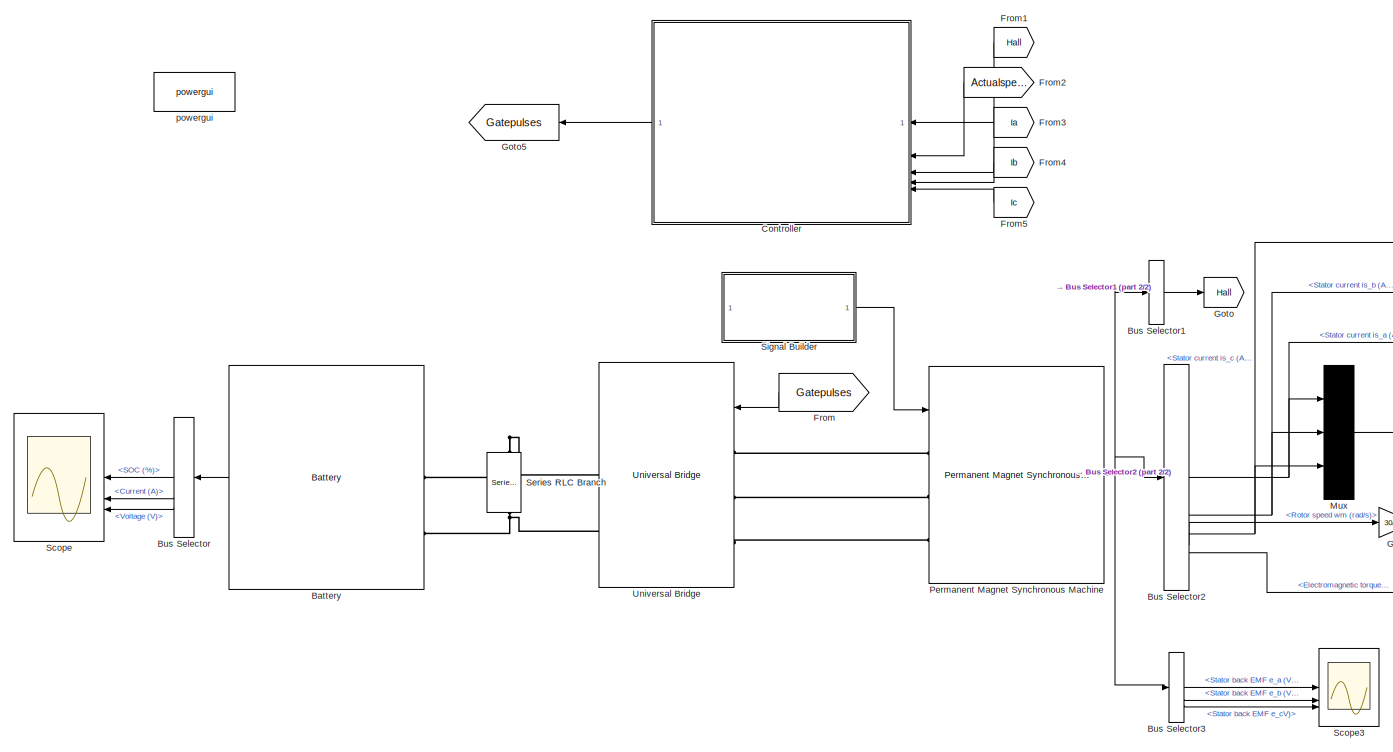
[diagram: root canvas - part 1/2, most of the canvas]
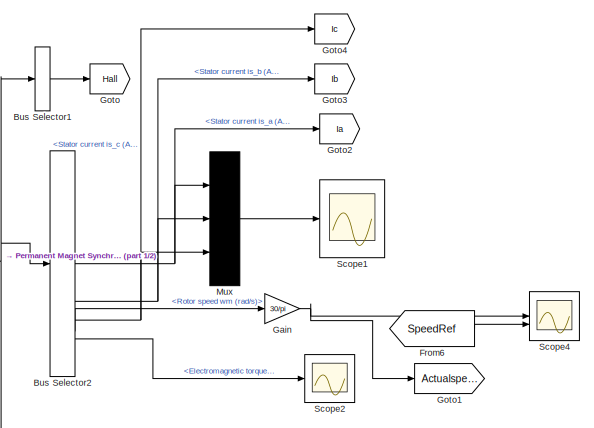
[diagram: root canvas - part 2/2, middle right region]
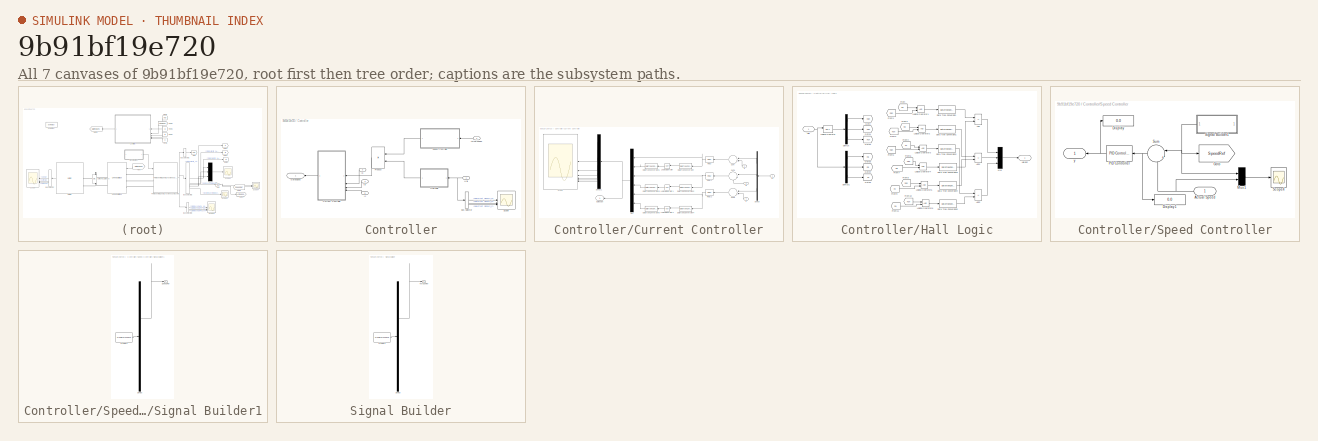
[diagram: thumbnail index - all 7 canvases of the model, root first then tree order]
MODEL slx_9b91bf19e720
KIND model
CONFIG AbsTol = auto
CONFIG EnableMultiTasking = off
CONFIG FixedStep = auto
CONFIG MaxStep = auto
CONFIG MinStep = auto
CONFIG RelTol = 1e-3
CONFIG SampleTimeConstraint = Unconstrained
CONFIG SolverName = VariableStepAuto
CONFIG StartTime = 0.0
CONFIG StopTime = 2.5
BLOCK [Reference] Battery  REF=spsBatteryLib/Battery
  SourceBlock = spsBatteryLib/Battery
  SourceType = Battery
BLOCK [BusSelector] Bus Selector
  NameLocation = top
  OutputSignals = SOC (%),Current (A),Voltage (V)
BLOCK [BusSelector] Bus Selector1
  OutputAsBus = on
  OutputSignals = Hall effect signal h_a,Hall effect signal h_b,Hall effect signal h_c
BLOCK [BusSelector] Bus Selector2
  OutputSignals = Stator current is_a (A),Stator current is_b (A),Stator current is_c (A),Rotor speed wm (rad/s),Electromagnetic torque Te (N*m)
BLOCK [BusSelector] Bus Selector3
  OutputSignals = Stator back EMF e_a (V),Stator back EMF e_b (V),Stator back EMF e_cV)
BLOCK [SubSystem] Controller
  NameLocation = top
BLOCK [Inport] Controller/Actual speed
  NameLocation = top
  Port = 2
BLOCK [BusSelector] Controller/Bus Selector
  OutputSignals = Hall effect signal h_a,Hall effect signal h_b,Hall effect signal h_c
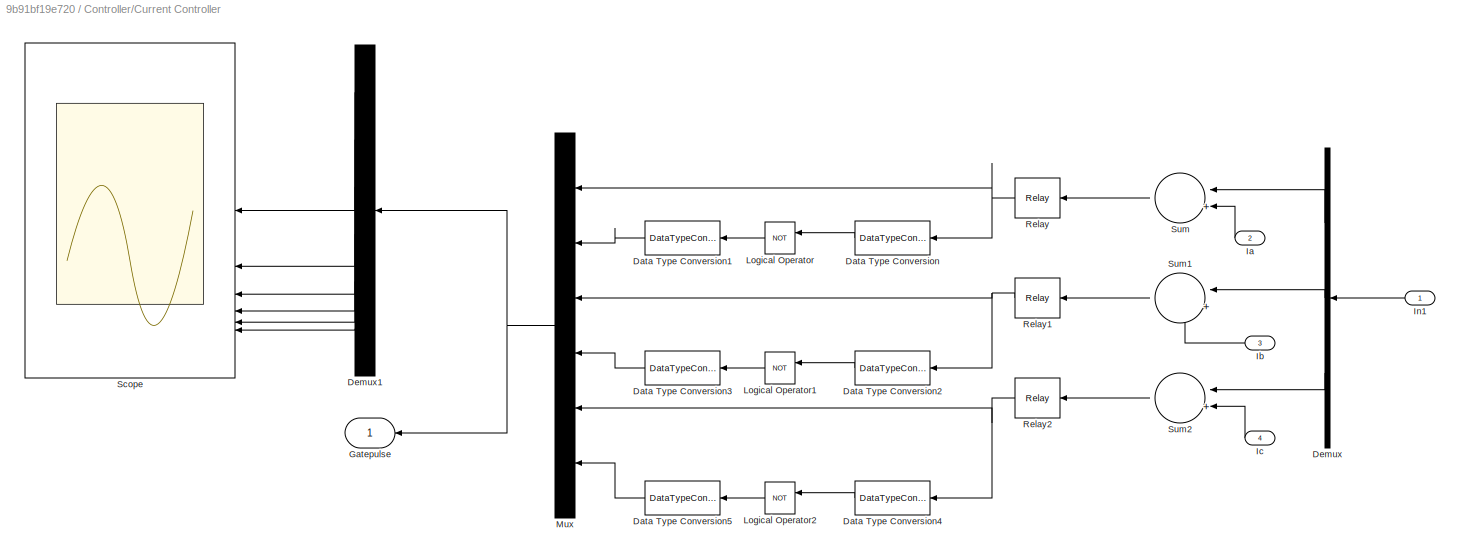
BLOCK [SubSystem] Controller/Current Controller
BLOCK [DataTypeConversion] Controller/Current Controller/Data Type Conversion
  NameLocation = top
  RndMeth = Floor
BLOCK [DataTypeConversion] Controller/Current Controller/Data Type Conversion1
  NameLocation = top
  RndMeth = Floor
BLOCK [DataTypeConversion] Controller/Current Controller/Data Type Conversion2
  NameLocation = top
  RndMeth = Floor
BLOCK [DataTypeConversion] Controller/Current Controller/Data Type Conversion3
  NameLocation = top
  RndMeth = Floor
BLOCK [DataTypeConversion] Controller/Current Controller/Data Type Conversion4
  NameLocation = top
  RndMeth = Floor
BLOCK [DataTypeConversion] Controller/Current Controller/Data Type Conversion5
  NameLocation = top
  RndMeth = Floor
BLOCK [Demux] Controller/Current Controller/Demux
  NameLocation = top
  Outputs = 3
BLOCK [Demux] Controller/Current Controller/Demux1
  NameLocation = top
  Outputs = 6
BLOCK [Outport] Controller/Current Controller/Gatepulse
  NameLocation = top
BLOCK [Inport] Controller/Current Controller/Ia
  NameLocation = top
  Port = 2
BLOCK [Inport] Controller/Current Controller/Ib
  NameLocation = top
  Port = 3
BLOCK [Inport] Controller/Current Controller/Ic
  NameLocation = top
  Port = 4
BLOCK [Inport] Controller/Current Controller/In1
BLOCK [Logic] Controller/Current Controller/Logical Operator
  AllPortsSameDT = off
  NameLocation = top
  Operator = NOT
  OutDataTypeStr = boolean
BLOCK [Logic] Controller/Current Controller/Logical Operator1
  AllPortsSameDT = off
  NameLocation = top
  Operator = NOT
  OutDataTypeStr = boolean
BLOCK [Logic] Controller/Current Controller/Logical Operator2
  AllPortsSameDT = off
  NameLocation = top
  Operator = NOT
  OutDataTypeStr = boolean
BLOCK [Mux] Controller/Current Controller/Mux
  DisplayOption = bar
  Inputs = 6
  NameLocation = top
BLOCK [Relay] Controller/Current Controller/Relay
  NameLocation = top
  OffSwitchValue = -5
  OnSwitchValue = 5
BLOCK [Relay] Controller/Current Controller/Relay1
  NameLocation = top
  OffSwitchValue = -5
  OnSwitchValue = 5
BLOCK [Relay] Controller/Current Controller/Relay2
  NameLocation = top
  OffSwitchValue = -5
  OnSwitchValue = 5
BLOCK [Scope] Controller/Current Controller/Scope
  Floating = off
  NameLocation = top
  NumInputPorts = 6
  ScopeSpecificationString = Simulink.scopes.TimeScopeBlockCfg('CurrentConfiguration', extmgr.ConfigurationSet(extmgr.Configuration('Core','General UI',true),extmgr.Configuration('Core','Source UI',true),extmgr.Configuration('Sources','WiredSimulink',true,'DataLoggingVariableName','ScopeData2'),extmgr.Configuration('Visuals','Time Domain',true,'SerializedDisplays',{struct('MinYLimReal','-0.125','MaxYLimReal','1.125','YLabelRe...<+1544ch>
BLOCK [Sum] Controller/Current Controller/Sum
  Inputs = |+-
  NameLocation = top
BLOCK [Sum] Controller/Current Controller/Sum1
  Inputs = |+-
  NameLocation = top
BLOCK [Sum] Controller/Current Controller/Sum2
  Inputs = |+-
  NameLocation = top
BLOCK [Outport] Controller/Gatepulses
  NameLocation = top
BLOCK [Inport] Controller/Hall
  NameLocation = top
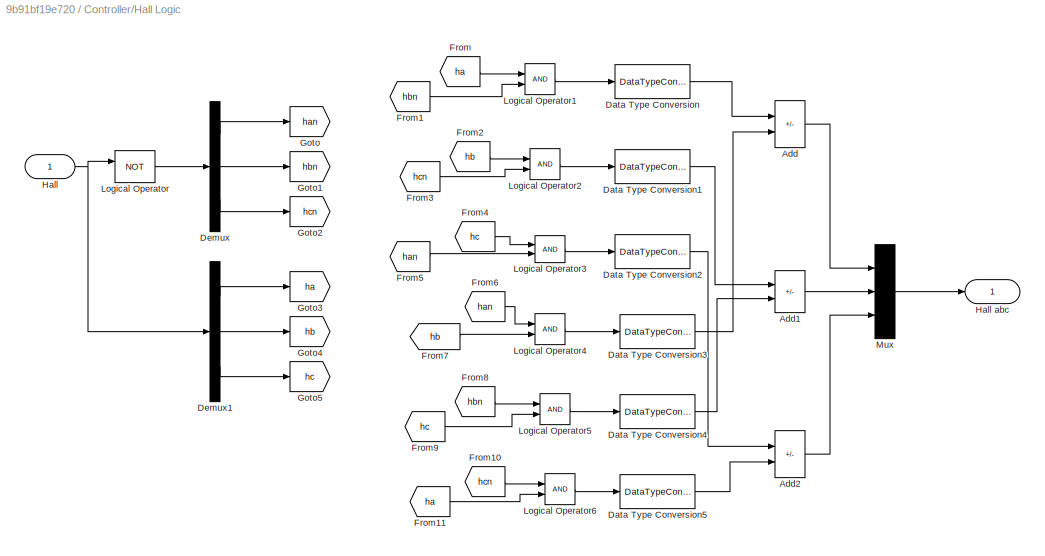
BLOCK [SubSystem] Controller/Hall Logic
  NameLocation = top
BLOCK [Sum] Controller/Hall Logic/Add
  IconShape = rectangular
  Inputs = +-
BLOCK [Sum] Controller/Hall Logic/Add1
  IconShape = rectangular
  Inputs = +-
BLOCK [Sum] Controller/Hall Logic/Add2
  IconShape = rectangular
  Inputs = +-
BLOCK [DataTypeConversion] Controller/Hall Logic/Data Type Conversion
  RndMeth = Floor
  SaturateOnIntegerOverflow = off
BLOCK [DataTypeConversion] Controller/Hall Logic/Data Type Conversion1
  RndMeth = Floor
  SaturateOnIntegerOverflow = off
BLOCK [DataTypeConversion] Controller/Hall Logic/Data Type Conversion2
  RndMeth = Floor
  SaturateOnIntegerOverflow = off
BLOCK [DataTypeConversion] Controller/Hall Logic/Data Type Conversion3
  RndMeth = Floor
  SaturateOnIntegerOverflow = off
BLOCK [DataTypeConversion] Controller/Hall Logic/Data Type Conversion4
  RndMeth = Floor
  SaturateOnIntegerOverflow = off
BLOCK [DataTypeConversion] Controller/Hall Logic/Data Type Conversion5
  RndMeth = Floor
  SaturateOnIntegerOverflow = off
BLOCK [Demux] Controller/Hall Logic/Demux
  Outputs = 3
BLOCK [Demux] Controller/Hall Logic/Demux1
  Outputs = 3
BLOCK [From] Controller/Hall Logic/From
  GotoTag = ha
  TagVisibility = global
BLOCK [From] Controller/Hall Logic/From1
  GotoTag = hbn
  TagVisibility = global
BLOCK [From] Controller/Hall Logic/From10
  GotoTag = hcn
  TagVisibility = global
BLOCK [From] Controller/Hall Logic/From11
  GotoTag = ha
  TagVisibility = global
BLOCK [From] Controller/Hall Logic/From2
  GotoTag = hb
  TagVisibility = global
BLOCK [From] Controller/Hall Logic/From3
  GotoTag = hcn
  TagVisibility = global
BLOCK [From] Controller/Hall Logic/From4
  GotoTag = hc
  TagVisibility = global
BLOCK [From] Controller/Hall Logic/From5
  GotoTag = han
  TagVisibility = global
BLOCK [From] Controller/Hall Logic/From6
  GotoTag = han
  TagVisibility = global
BLOCK [From] Controller/Hall Logic/From7
  GotoTag = hb
  TagVisibility = global
BLOCK [From] Controller/Hall Logic/From8
  GotoTag = hbn
  TagVisibility = global
BLOCK [From] Controller/Hall Logic/From9
  GotoTag = hc
  TagVisibility = global
BLOCK [Goto] Controller/Hall Logic/Goto
  GotoTag = han
  TagVisibility = global
BLOCK [Goto] Controller/Hall Logic/Goto1
  GotoTag = hbn
  TagVisibility = global
BLOCK [Goto] Controller/Hall Logic/Goto2
  GotoTag = hcn
  TagVisibility = global
BLOCK [Goto] Controller/Hall Logic/Goto3
  GotoTag = ha
  TagVisibility = global
BLOCK [Goto] Controller/Hall Logic/Goto4
  GotoTag = hb
  TagVisibility = global
BLOCK [Goto] Controller/Hall Logic/Goto5
  GotoTag = hc
  TagVisibility = global
BLOCK [Inport] Controller/Hall Logic/Hall
BLOCK [Outport] Controller/Hall Logic/Hall abc
BLOCK [Logic] Controller/Hall Logic/Logical Operator
  AllPortsSameDT = off
  Operator = NOT
  OutDataTypeStr = boolean
BLOCK [Logic] Controller/Hall Logic/Logical Operator1
  AllPortsSameDT = off
  OutDataTypeStr = boolean
BLOCK [Logic] Controller/Hall Logic/Logical Operator2
  AllPortsSameDT = off
  OutDataTypeStr = boolean
BLOCK [Logic] Controller/Hall Logic/Logical Operator3
  AllPortsSameDT = off
  OutDataTypeStr = boolean
BLOCK [Logic] Controller/Hall Logic/Logical Operator4
  AllPortsSameDT = off
  OutDataTypeStr = boolean
BLOCK [Logic] Controller/Hall Logic/Logical Operator5
  AllPortsSameDT = off
  OutDataTypeStr = boolean
BLOCK [Logic] Controller/Hall Logic/Logical Operator6
  AllPortsSameDT = off
  OutDataTypeStr = boolean
BLOCK [Mux] Controller/Hall Logic/Mux
  DisplayOption = bar
  Inputs = 3
BLOCK [Inport] Controller/Ia
  NameLocation = top
  Port = 3
BLOCK [Inport] Controller/Ib
  NameLocation = top
  Port = 4
BLOCK [Inport] Controller/Ic
  NameLocation = top
  Port = 5
BLOCK [Product] Controller/Product
  NameLocation = top
BLOCK [Scope] Controller/Scope
  Floating = off
  NumInputPorts = 3
  ScopeSpecificationString = Simulink.scopes.TimeScopeBlockCfg('CurrentConfiguration', extmgr.ConfigurationSet(extmgr.Configuration('Core','General UI',true),extmgr.Configuration('Core','Source UI',true),extmgr.Configuration('Sources','WiredSimulink',true,'DataLoggingVariableName','ScopeData1'),extmgr.Configuration('Visuals','Time Domain',true,'SerializedDisplays',{struct('MinYLimReal','-0.125','MaxYLimReal','1.125','YLabelRe...<+1679ch>
BLOCK [SubSystem] Controller/Speed Controller
  NameLocation = top
BLOCK [Inport] Controller/Speed Controller/Actual Speed
  NameLocation = top
BLOCK [Display] Controller/Speed Controller/Display
  Decimation = 1
BLOCK [Display] Controller/Speed Controller/Display1
  Decimation = 1
BLOCK [Goto] Controller/Speed Controller/Goto
  GotoTag = SpeedRef
  TagVisibility = global
BLOCK [Mux] Controller/Speed Controller/Mux1
  DisplayOption = bar
  Inputs = 2
BLOCK [Reference] Controller/Speed Controller/PID Controller  REF=slpidlib/PID Controller
  NameLocation = top
  SourceBlock = slpidlib/PID Controller
  SourceType = PID 1dof
BLOCK [Scope] Controller/Speed Controller/Scope4
  Floating = off
  NumInputPorts = 1
  ScopeSpecificationString = Simulink.scopes.TimeScopeBlockCfg('CurrentConfiguration', extmgr.ConfigurationSet(extmgr.Configuration('Core','General UI',true),extmgr.Configuration('Core','Source UI',true),extmgr.Configuration('Sources','WiredSimulink',true,'DataLoggingVariableName','ScopeData4'),extmgr.Configuration('Visuals','Time Domain',true,'SerializedDisplays',{struct('MinYLimReal','-335.42141','MaxYLimReal','2840.22703',...<+1557ch>
BLOCK [SubSystem] Controller/Speed Controller/Signal Builder1
  ClipboardFcn = sigbuilder_block('clipboard');
  CloseFcn = sigbuilder_block('close');
  ContinueFcn = sigbuilder_block('continue');
  CopyFcn = sigbuilder_block('copy');
  DeleteFcn = sigbuilder_block('delete');
  LoadFcn = sigbuilder_block('load');
  MaskHideContents = on
  ModelCloseFcn = sigbuilder_block('modelClose');
  NameChangeFcn = sigbuilder_block('namechange');
  NameLocation = top
  OpenFcn = sigbuilder_block('open',[437.6 199.2 550.4 400 ]);
  PauseFcn = sigbuilder_block('pause');
  PreSaveFcn = sigbuilder_block('preSave');
  StartFcn = sigbuilder_block('start');
  StopFcn = sigbuilder_block('stop');
  Tag = STV Subsys
BLOCK [Demux] Controller/Speed Controller/Signal Builder1/Demux
  DisplayOption = none
  Outputs = 1
  Tag = STV Demux
BLOCK [FromWorkspace] Controller/Speed Controller/Signal Builder1/FromWs
  Tag = STV FromWs
  VariableName = tuvar
BLOCK [Outport] Controller/Speed Controller/Signal Builder1/Speed Ref
  Tag = STV Outport
BLOCK [Sum] Controller/Speed Controller/Sum
  Inputs = |+-
  NameLocation = top
BLOCK [Outport] Controller/Speed Controller/y
  NameLocation = top
BLOCK [From] From
  GotoTag = Gatepulses
  NameLocation = top
  TagVisibility = global
BLOCK [From] From1
  GotoTag = Hall
  NameLocation = top
  TagVisibility = global
BLOCK [From] From2
  GotoTag = Actualspeed
  NameLocation = top
  TagVisibility = global
BLOCK [From] From3
  GotoTag = Ia
  NameLocation = top
  TagVisibility = global
BLOCK [From] From4
  GotoTag = Ib
  NameLocation = top
  TagVisibility = global
BLOCK [From] From5
  GotoTag = Ic
  NameLocation = top
  TagVisibility = global
BLOCK [From] From6
  GotoTag = SpeedRef
  TagVisibility = global
BLOCK [Gain] Gain
  Gain = 30/pi
BLOCK [Goto] Goto
  GotoTag = Hall
  TagVisibility = global
BLOCK [Goto] Goto1
  GotoTag = Actualspeed
  TagVisibility = global
BLOCK [Goto] Goto2
  GotoTag = Ia
  TagVisibility = global
BLOCK [Goto] Goto3
  GotoTag = Ib
  TagVisibility = global
BLOCK [Goto] Goto4
  GotoTag = Ic
  TagVisibility = global
BLOCK [Goto] Goto5
  GotoTag = Gatepulses
  NameLocation = top
  TagVisibility = global
BLOCK [Mux] Mux
  DisplayOption = bar
  Inputs = 3
BLOCK [Reference] Permanent Magnet Synchronous Machine  REF=spsPermanentMagnetSynchronousMachineLib/Permanent Magnet
Synchronous Machine
  SourceBlock = spsPermanentMagnetSynchronousMachineLib/Permanent Magnet\nSynchronous Machine
  SourceType = Permanent Magnet Synchronous Machine
BLOCK [Scope] Scope
  Floating = off
  NameLocation = top
  NumInputPorts = 3
  ScopeSpecificationString = Simulink.scopes.TimeScopeBlockCfg('CurrentConfiguration', extmgr.ConfigurationSet(extmgr.Configuration('Core','General UI',true),extmgr.Configuration('Core','Source UI',true),extmgr.Configuration('Sources','WiredSimulink',true),extmgr.Configuration('Visuals','Time Domain',true,'SerializedDisplays',{struct('MinYLimReal','59.99583','MaxYLimReal','60.00046','YLabelReal','','MinYLimMag','59.99583','Ma...<+2998ch>
BLOCK [Scope] Scope1
  Floating = off
  NumInputPorts = 1
  ScopeSpecificationString = Simulink.scopes.TimeScopeBlockCfg('CurrentConfiguration', extmgr.ConfigurationSet(extmgr.Configuration('Core','General UI',true),extmgr.Configuration('Core','Source UI',true),extmgr.Configuration('Sources','WiredSimulink',true,'DataLoggingVariableName','ScopeData1'),extmgr.Configuration('Visuals','Time Domain',true,'SerializedDisplays',{struct('MinYLimReal','-110.59291','MaxYLimReal','111.82512','...<+1708ch>
BLOCK [Scope] Scope2
  Floating = off
  NumInputPorts = 1
  ScopeSpecificationString = Simulink.scopes.TimeScopeBlockCfg('CurrentConfiguration', extmgr.ConfigurationSet(extmgr.Configuration('Core','General UI',true),extmgr.Configuration('Core','Source UI',true),extmgr.Configuration('Sources','WiredSimulink',true,'DataLoggingVariableName','ScopeData2'),extmgr.Configuration('Visuals','Time Domain',true,'SerializedDisplays',{struct('MinYLimReal','-8.22942','MaxYLimReal','10.25061','YLa...<+1592ch>
BLOCK [Scope] Scope3
  Floating = off
  NumInputPorts = 3
  ScopeSpecificationString = Simulink.scopes.TimeScopeBlockCfg('CurrentConfiguration', extmgr.ConfigurationSet(extmgr.Configuration('Core','General UI',true),extmgr.Configuration('Core','Source UI',true),extmgr.Configuration('Sources','WiredSimulink',true,'DataLoggingVariableName','ScopeData3'),extmgr.Configuration('Visuals','Time Domain',true,'SerializedDisplays',{struct('MinYLimReal','-15.68254','MaxYLimReal','15.66091','YL...<+3073ch>
BLOCK [Scope] Scope4
  Floating = off
  NumInputPorts = 2
  ScopeSpecificationString = Simulink.scopes.TimeScopeBlockCfg('CurrentConfiguration', extmgr.ConfigurationSet(extmgr.Configuration('Core','General UI',true),extmgr.Configuration('Core','Source UI',true),extmgr.Configuration('Sources','WiredSimulink',true,'DataLoggingVariableName','ScopeData3'),extmgr.Configuration('Visuals','Time Domain',true,'SerializedDisplays',{struct('MinYLimReal','-335.42141','MaxYLimReal','2840.22703',...<+1658ch>
BLOCK [Reference] Series RLC Branch  REF=spsSeriesRLCBranchLib/Series RLC Branch
  NameLocation = left
  SourceBlock = spsSeriesRLCBranchLib/Series RLC Branch
  SourceType = Series RLC Branch
BLOCK [SubSystem] Signal Builder
  ClipboardFcn = sigbuilder_block('clipboard');
  CloseFcn = sigbuilder_block('close');
  ContinueFcn = sigbuilder_block('continue');
  CopyFcn = sigbuilder_block('copy');
  DeleteFcn = sigbuilder_block('delete');
  LoadFcn = sigbuilder_block('load');
  MaskHideContents = on
  ModelCloseFcn = sigbuilder_block('modelClose');
  NameChangeFcn = sigbuilder_block('namechange');
  OpenFcn = sigbuilder_block('open',[437.6 199.2 550.4 400 ]);
  PauseFcn = sigbuilder_block('pause');
  PreSaveFcn = sigbuilder_block('preSave');
  StartFcn = sigbuilder_block('start');
  StopFcn = sigbuilder_block('stop');
  Tag = STV Subsys
BLOCK [Demux] Signal Builder/Demux
  DisplayOption = none
  Outputs = 1
  Tag = STV Demux
BLOCK [FromWorkspace] Signal Builder/FromWs
  Tag = STV FromWs
  VariableName = tuvar
BLOCK [Outport] Signal Builder/Torque Ref
  Tag = STV Outport
BLOCK [Reference] Universal Bridge  REF=spsUniversalBridgeLib/Universal Bridge
  SourceBlock = spsUniversalBridgeLib/Universal Bridge
  SourceType = Universal Bridge
BLOCK [Reference] powergui  REF=spspowerguiLib/powergui
  Priority = 1
  SourceBlock = spspowerguiLib/powergui
  SourceType = PSB option menu block
LINE Battery:1 -> Bus Selector:1
LINE Bus Selector1:1 -> Goto:1
NET Bus Selector2:1 -> Goto2:1, Mux:1
NET Bus Selector2:2 -> Goto3:1, Mux:2
NET Bus Selector2:3 -> Goto4:1, Mux:3
LINE Bus Selector2:4 -> Gain:1
LINE Bus Selector2:5 -> Scope2:1
LINE Bus Selector3:1 -> Scope3:1
LINE Bus Selector3:2 -> Scope3:2
LINE Bus Selector3:3 -> Scope3:3
LINE Bus Selector:1 -> Scope:1
LINE Bus Selector:2 -> Scope:2
LINE Bus Selector:3 -> Scope:3
LINE Controller/Actual speed:1 -> Controller/Speed Controller:1
LINE Controller/Bus Selector:1 -> Controller/Scope:1
LINE Controller/Bus Selector:2 -> Controller/Scope:2
LINE Controller/Bus Selector:3 -> Controller/Scope:3
LINE Controller/Current Controller/Data Type Conversion1:1 -> Controller/Current Controller/Mux:2
LINE Controller/Current Controller/Data Type Conversion2:1 -> Controller/Current Controller/Logical Operator1:1
LINE Controller/Current Controller/Data Type Conversion3:1 -> Controller/Current Controller/Mux:4
LINE Controller/Current Controller/Data Type Conversion4:1 -> Controller/Current Controller/Logical Operator2:1
LINE Controller/Current Controller/Data Type Conversion5:1 -> Controller/Current Controller/Mux:6
LINE Controller/Current Controller/Data Type Conversion:1 -> Controller/Current Controller/Logical Operator:1
LINE Controller/Current Controller/Demux1:1 -> Controller/Current Controller/Scope:1
LINE Controller/Current Controller/Demux1:2 -> Controller/Current Controller/Scope:2
LINE Controller/Current Controller/Demux1:3 -> Controller/Current Controller/Scope:3
LINE Controller/Current Controller/Demux1:4 -> Controller/Current Controller/Scope:4
LINE Controller/Current Controller/Demux1:5 -> Controller/Current Controller/Scope:5
LINE Controller/Current Controller/Demux1:6 -> Controller/Current Controller/Scope:6
LINE Controller/Current Controller/Demux:1 -> Controller/Current Controller/Sum:1
LINE Controller/Current Controller/Demux:2 -> Controller/Current Controller/Sum1:1
LINE Controller/Current Controller/Demux:3 -> Controller/Current Controller/Sum2:1
LINE Controller/Current Controller/Ia:1 -> Controller/Current Controller/Sum:2
LINE Controller/Current Controller/Ib:1 -> Controller/Current Controller/Sum1:2
LINE Controller/Current Controller/Ic:1 -> Controller/Current Controller/Sum2:2
LINE Controller/Current Controller/In1:1 -> Controller/Current Controller/Demux:1
LINE Controller/Current Controller/Logical Operator1:1 -> Controller/Current Controller/Data Type Conversion3:1
LINE Controller/Current Controller/Logical Operator2:1 -> Controller/Current Controller/Data Type Conversion5:1
LINE Controller/Current Controller/Logical Operator:1 -> Controller/Current Controller/Data Type Conversion1:1
NET Controller/Current Controller/Mux:1 -> Controller/Current Controller/Demux1:1, Controller/Current Controller/Gatepulse:1
NET Controller/Current Controller/Relay1:1 -> Controller/Current Controller/Data Type Conversion2:1, Controller/Current Controller/Mux:3
NET Controller/Current Controller/Relay2:1 -> Controller/Current Controller/Data Type Conversion4:1, Controller/Current Controller/Mux:5
NET Controller/Current Controller/Relay:1 -> Controller/Current Controller/Data Type Conversion:1, Controller/Current Controller/Mux:1
LINE Controller/Current Controller/Sum1:1 -> Controller/Current Controller/Relay1:1
LINE Controller/Current Controller/Sum2:1 -> Controller/Current Controller/Relay2:1
LINE Controller/Current Controller/Sum:1 -> Controller/Current Controller/Relay:1
LINE Controller/Current Controller:1 -> Controller/Gatepulses:1
LINE Controller/Hall Logic/Add1:1 -> Controller/Hall Logic/Mux:2
LINE Controller/Hall Logic/Add2:1 -> Controller/Hall Logic/Mux:3
LINE Controller/Hall Logic/Add:1 -> Controller/Hall Logic/Mux:1
LINE Controller/Hall Logic/Data Type Conversion1:1 -> Controller/Hall Logic/Add1:1
LINE Controller/Hall Logic/Data Type Conversion2:1 -> Controller/Hall Logic/Add2:1
LINE Controller/Hall Logic/Data Type Conversion3:1 -> Controller/Hall Logic/Add:2
LINE Controller/Hall Logic/Data Type Conversion4:1 -> Controller/Hall Logic/Add1:2
LINE Controller/Hall Logic/Data Type Conversion5:1 -> Controller/Hall Logic/Add2:2
LINE Controller/Hall Logic/Data Type Conversion:1 -> Controller/Hall Logic/Add:1
LINE Controller/Hall Logic/Demux1:1 -> Controller/Hall Logic/Goto3:1
LINE Controller/Hall Logic/Demux1:2 -> Controller/Hall Logic/Goto4:1
LINE Controller/Hall Logic/Demux1:3 -> Controller/Hall Logic/Goto5:1
LINE Controller/Hall Logic/Demux:1 -> Controller/Hall Logic/Goto:1
LINE Controller/Hall Logic/Demux:2 -> Controller/Hall Logic/Goto1:1
LINE Controller/Hall Logic/Demux:3 -> Controller/Hall Logic/Goto2:1
LINE Controller/Hall Logic/From10:1 -> Controller/Hall Logic/Logical Operator6:1
LINE Controller/Hall Logic/From11:1 -> Controller/Hall Logic/Logical Operator6:2
LINE Controller/Hall Logic/From1:1 -> Controller/Hall Logic/Logical Operator1:2
LINE Controller/Hall Logic/From2:1 -> Controller/Hall Logic/Logical Operator2:1
LINE Controller/Hall Logic/From3:1 -> Controller/Hall Logic/Logical Operator2:2
LINE Controller/Hall Logic/From4:1 -> Controller/Hall Logic/Logical Operator3:1
LINE Controller/Hall Logic/From5:1 -> Controller/Hall Logic/Logical Operator3:2
LINE Controller/Hall Logic/From6:1 -> Controller/Hall Logic/Logical Operator4:1
LINE Controller/Hall Logic/From7:1 -> Controller/Hall Logic/Logical Operator4:2
LINE Controller/Hall Logic/From8:1 -> Controller/Hall Logic/Logical Operator5:1
LINE Controller/Hall Logic/From9:1 -> Controller/Hall Logic/Logical Operator5:2
LINE Controller/Hall Logic/From:1 -> Controller/Hall Logic/Logical Operator1:1
NET Controller/Hall Logic/Hall:1 -> Controller/Hall Logic/Demux1:1, Controller/Hall Logic/Logical Operator:1
LINE Controller/Hall Logic/Logical Operator1:1 -> Controller/Hall Logic/Data Type Conversion:1
LINE Controller/Hall Logic/Logical Operator2:1 -> Controller/Hall Logic/Data Type Conversion1:1
LINE Controller/Hall Logic/Logical Operator3:1 -> Controller/Hall Logic/Data Type Conversion2:1
LINE Controller/Hall Logic/Logical Operator4:1 -> Controller/Hall Logic/Data Type Conversion3:1
LINE Controller/Hall Logic/Logical Operator5:1 -> Controller/Hall Logic/Data Type Conversion4:1
LINE Controller/Hall Logic/Logical Operator6:1 -> Controller/Hall Logic/Data Type Conversion5:1
LINE Controller/Hall Logic/Logical Operator:1 -> Controller/Hall Logic/Demux:1
LINE Controller/Hall Logic/Mux:1 -> Controller/Hall Logic/Hall abc:1
LINE Controller/Hall Logic:1 -> Controller/Product:2
NET Controller/Hall:1 -> Controller/Bus Selector:1, Controller/Hall Logic:1
LINE Controller/Ia:1 -> Controller/Current Controller:2
LINE Controller/Ib:1 -> Controller/Current Controller:3
LINE Controller/Ic:1 -> Controller/Current Controller:4
LINE Controller/Product:1 -> Controller/Current Controller:1
NET Controller/Speed Controller/Actual Speed:1 -> Controller/Speed Controller/Mux1:2, Controller/Speed Controller/Sum:2
LINE Controller/Speed Controller/Mux1:1 -> Controller/Speed Controller/Scope4:1
NET Controller/Speed Controller/PID Controller:1 -> Controller/Speed Controller/Display:1, Controller/Speed Controller/y:1
NET Controller/Speed Controller/Signal Builder1:1 -> Controller/Speed Controller/Goto:1, Controller/Speed Controller/Mux1:1, Controller/Speed Controller/Sum:1
NET Controller/Speed Controller/Sum:1 -> Controller/Speed Controller/Display1:1, Controller/Speed Controller/PID Controller:1
LINE Controller/Speed Controller:1 -> Controller/Product:1
LINE Controller:1 -> Goto5:1
LINE From1:1 -> Controller:1
LINE From2:1 -> Controller:2
LINE From3:1 -> Controller:3
LINE From4:1 -> Controller:4
LINE From5:1 -> Controller:5
LINE From6:1 -> Scope4:2
LINE From:1 -> Universal Bridge:1
NET Gain:1 -> Goto1:1, Scope4:1
LINE Mux:1 -> Scope1:1
NET Permanent Magnet Synchronous Machine:1 -> Bus Selector1:1, Bus Selector2:1, Bus Selector3:1
LINE Signal Builder:1 -> Permanent Magnet Synchronous Machine:1
PNET net1: Battery:LConn1 -- Series RLC Branch:LConn1 -- Universal Bridge:RConn1
PNET net2: Battery:LConn2 -- Series RLC Branch:RConn1 -- Universal Bridge:RConn2
PLINE Permanent Magnet Synchronous Machine:LConn1 -- Universal Bridge:LConn1
PLINE Permanent Magnet Synchronous Machine:LConn2 -- Universal Bridge:LConn2
PLINE Permanent Magnet Synchronous Machine:LConn3 -- Universal Bridge:LConn3
note: NET lines group one-source signal fan-out (src -> all destinations, sorted); 1:1 wires keep LINE; PNET lines group multi-terminal physical nets as a canonical sorted terminal list (undirected conserving connections); 2-terminal nets keep the pairwise PLINE form
